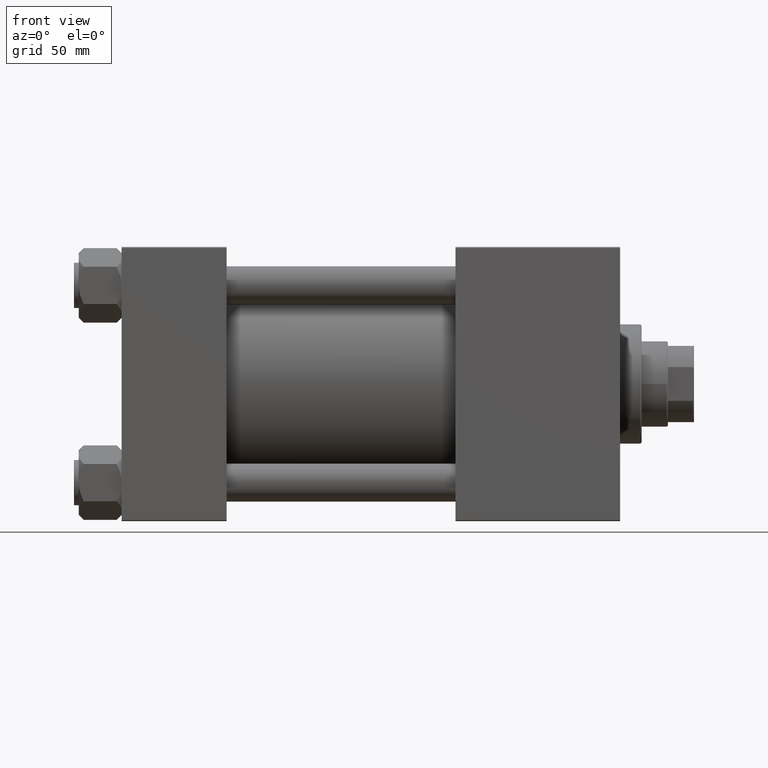
[diagram: clean part render]
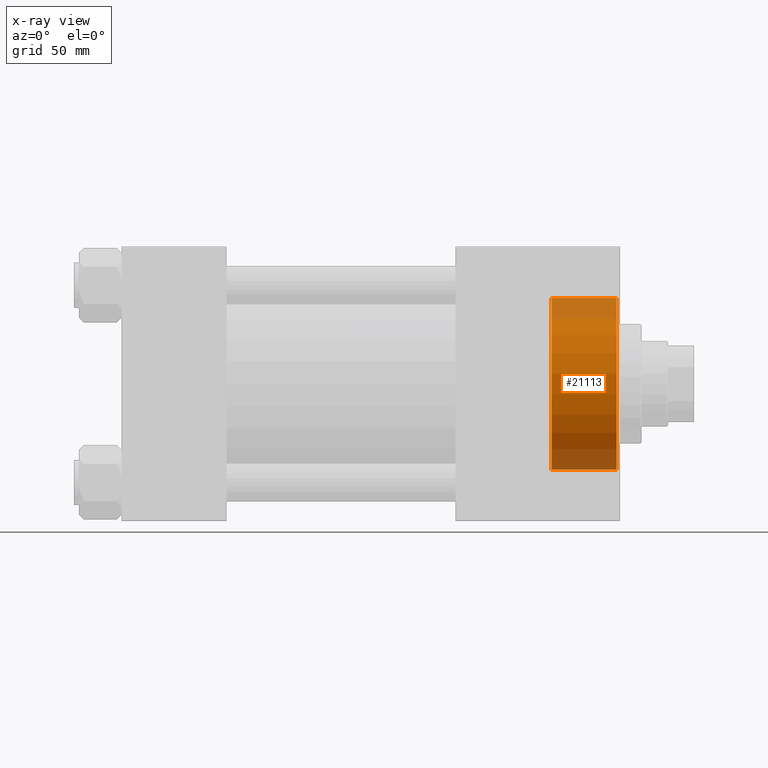
[diagram: x-ray — body ghosted, one internal face saturated and labeled with its STEP entity id]
A machine part, front view, then the same camera in x-ray: the body is ghosted and one INTERNAL B-rep face — a face not visible from any outside direction — is saturated and labeled: STEP entity #21113.
In plain terms, the highlighted cylindrical surface (partial cylindrical patch) has radius 36 mm, axis along (1, 0, 0).
Its self-contained STEP definition (entity closure, byte-faithful):
#3947 = ORIENTED_EDGE ( 'NONE', *, *, #39591, .F. ) ;
#4962 = CARTESIAN_POINT ( 'NONE',  ( 180.3000000000000114, 0.000000000000000000, 0.000000000000000000 ) ) ;
#5432 = CARTESIAN_POINT ( 'NONE',  ( 180.3000000000000114, 0.000000000000000000, -36.00000000000000000 ) ) ;
#7476 = CIRCLE ( 'NONE', #15839, 36.00000000000000000 ) ;
#8871 = FACE_OUTER_BOUND ( 'NONE', #43528, .T. ) ;
#8911 = VERTEX_POINT ( 'NONE', #21545 ) ;
#8986 = DIRECTION ( 'NONE',  ( 0.000000000000000000, 0.000000000000000000, 1.000000000000000000 ) ) ;
#9129 = DIRECTION ( 'NONE',  ( 0.000000000000000000, 0.000000000000000000, -1.000000000000000000 ) ) ;
#10387 = CARTESIAN_POINT ( 'NONE',  ( 180.3000000000000114, 4.408728476930470856E-15, 36.00000000000000000 ) ) ;
#10430 = AXIS2_PLACEMENT_3D ( 'NONE', #49830, #41710, #8986 ) ;
#12078 = VERTEX_POINT ( 'NONE', #45820 ) ;
#12954 = CIRCLE ( 'NONE', #10430, 36.00000000000000000 ) ;
#13797 = LINE ( 'NONE', #10387, #43097 ) ;
#15839 = AXIS2_PLACEMENT_3D ( 'NONE', #19270, #31856, #47569 ) ;
#17381 = VERTEX_POINT ( 'NONE', #40027 ) ;
#17465 = DIRECTION ( 'NONE',  ( 1.000000000000000000, -0.000000000000000000, -0.000000000000000000 ) ) ;
#18041 = ORIENTED_EDGE ( 'NONE', *, *, #47451, .F. ) ;
#19270 = CARTESIAN_POINT ( 'NONE',  ( 180.3000000000000114, 0.000000000000000000, 0.000000000000000000 ) ) ;
#20170 = VECTOR ( 'NONE', #21911, 1000.000000000000000 ) ;
#20918 = DIRECTION ( 'NONE',  ( 1.000000000000000000, -0.000000000000000000, -0.000000000000000000 ) ) ;
#21113 = ADVANCED_FACE ( 'NONE', ( #8871 ), #40825, .F. ) ;
#21545 = CARTESIAN_POINT ( 'NONE',  ( 207.5000000000000000, 0.000000000000000000, -36.00000000000000000 ) ) ;
#21911 = DIRECTION ( 'NONE',  ( 1.000000000000000000, -0.000000000000000000, -0.000000000000000000 ) ) ;
#24537 = AXIS2_PLACEMENT_3D ( 'NONE', #4962, #20918, #9129 ) ;
#29154 = EDGE_CURVE ( 'NONE', #44768, #17381, #13797, .T. ) ;
#29734 = EDGE_CURVE ( 'NONE', #17381, #8911, #12954, .T. ) ;
#31856 = DIRECTION ( 'NONE',  ( 1.000000000000000000, 0.000000000000000000, 0.000000000000000000 ) ) ;
#36229 = ORIENTED_EDGE ( 'NONE', *, *, #29734, .T. ) ;
#39591 = EDGE_CURVE ( 'NONE', #44768, #12078, #7476, .T. ) ;
#40027 = CARTESIAN_POINT ( 'NONE',  ( 207.5000000000000000, 4.408728476930470856E-15, 36.00000000000000000 ) ) ;
#40825 = CYLINDRICAL_SURFACE ( 'NONE', #24537, 36.00000000000000000 ) ;
#41689 = ORIENTED_EDGE ( 'NONE', *, *, #29154, .T. ) ;
#41710 = DIRECTION ( 'NONE',  ( 1.000000000000000000, 0.000000000000000000, 0.000000000000000000 ) ) ;
#43043 = CARTESIAN_POINT ( 'NONE',  ( 180.3000000000000114, 4.408728476930470856E-15, 36.00000000000000000 ) ) ;
#43097 = VECTOR ( 'NONE', #17465, 1000.000000000000000 ) ;
#43528 = EDGE_LOOP ( 'NONE', ( #3947, #41689, #36229, #18041 ) ) ;
#44768 = VERTEX_POINT ( 'NONE', #43043 ) ;
#45494 = LINE ( 'NONE', #5432, #20170 ) ;
#45820 = CARTESIAN_POINT ( 'NONE',  ( 180.3000000000000114, 0.000000000000000000, -36.00000000000000000 ) ) ;
#47451 = EDGE_CURVE ( 'NONE', #12078, #8911, #45494, .T. ) ;
#47569 = DIRECTION ( 'NONE',  ( 0.000000000000000000, 0.000000000000000000, -1.000000000000000000 ) ) ;
#49830 = CARTESIAN_POINT ( 'NONE',  ( 207.5000000000000000, 0.000000000000000000, 0.000000000000000000 ) ) ;